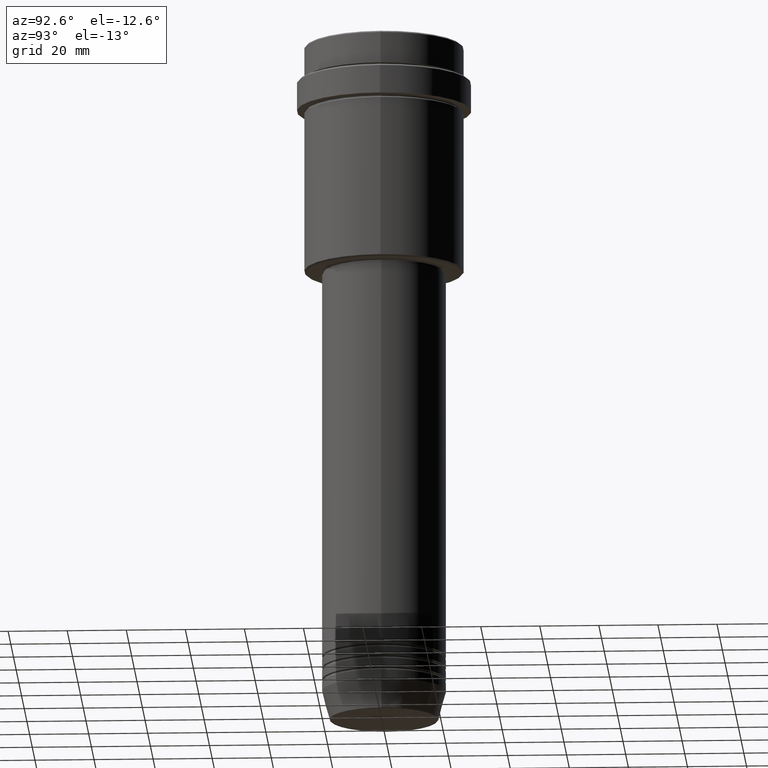
[diagram: clean part render]
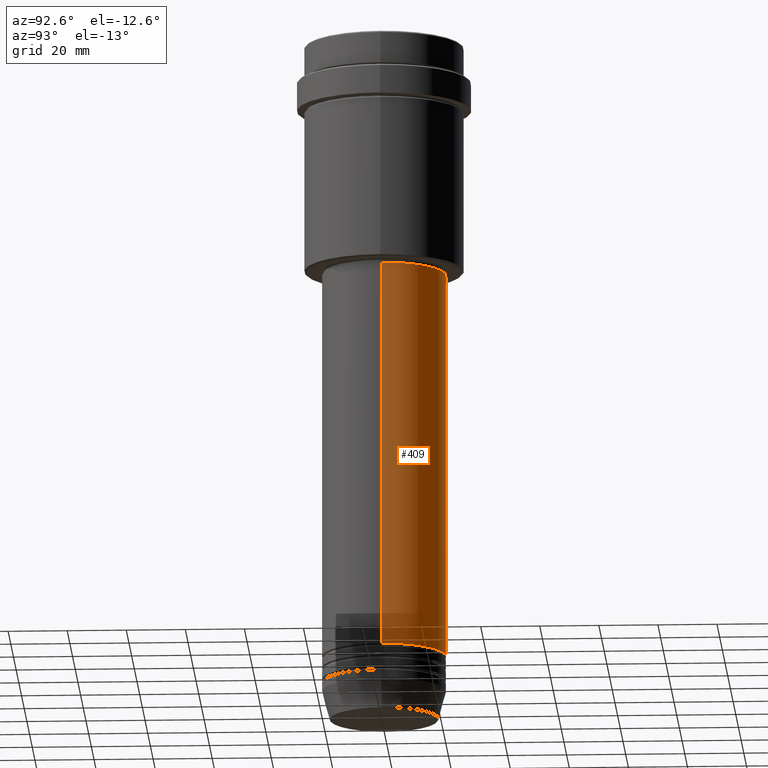
[diagram: same view with one face highlighted and labeled with its STEP entity id]
A machine part, auxiliary view. The second image highlights one B-rep face of the part: STEP entity #409.
In plain terms, the highlighted cylindrical surface (partial cylindrical patch) has radius 21 mm, axis along (-0, -0, 1).
Its self-contained STEP definition (entity closure, byte-faithful):
#27 = AXIS2_PLACEMENT_3D ( 'NONE', #1190, #228, #719 ) ;
#46 = VERTEX_POINT ( 'NONE', #684 ) ;
#145 = ORIENTED_EDGE ( 'NONE', *, *, #670, .F. ) ;
#170 = AXIS2_PLACEMENT_3D ( 'NONE', #1236, #271, #496 ) ;
#203 = CARTESIAN_POINT ( 'NONE',  ( -21.00000000000000000, 2.571758278209441661E-15, -210.9999999999999432 ) ) ;
#214 = CARTESIAN_POINT ( 'NONE',  ( -21.00000000000000000, 2.571758278209441661E-15, 0.000000000000000000 ) ) ;
#222 = CIRCLE ( 'NONE', #170, 21.00000000000000000 ) ;
#228 = DIRECTION ( 'NONE',  ( -0.000000000000000000, -0.000000000000000000, 1.000000000000000000 ) ) ;
#271 = DIRECTION ( 'NONE',  ( -0.000000000000000000, -0.000000000000000000, 1.000000000000000000 ) ) ;
#325 = DIRECTION ( 'NONE',  ( -0.000000000000000000, -0.000000000000000000, 1.000000000000000000 ) ) ;
#333 = VECTOR ( 'NONE', #432, 1000.000000000000000 ) ;
#337 = EDGE_CURVE ( 'NONE', #464, #1215, #1069, .T. ) ;
#350 = EDGE_CURVE ( 'NONE', #464, #46, #427, .T. ) ;
#409 = ADVANCED_FACE ( 'NONE', ( #865 ), #415, .T. ) ;
#415 = CYLINDRICAL_SURFACE ( 'NONE', #27, 21.00000000000000000 ) ;
#427 = LINE ( 'NONE', #546, #1163 ) ;
#432 = DIRECTION ( 'NONE',  ( -0.000000000000000000, -0.000000000000000000, 1.000000000000000000 ) ) ;
#433 = DIRECTION ( 'NONE',  ( -0.000000000000000000, -0.000000000000000000, 1.000000000000000000 ) ) ;
#464 = VERTEX_POINT ( 'NONE', #958 ) ;
#486 = CARTESIAN_POINT ( 'NONE',  ( -21.00000000000000000, 2.571758278209441661E-15, -79.00000000000001421 ) ) ;
#496 = DIRECTION ( 'NONE',  ( 1.000000000000000000, 0.000000000000000000, 0.000000000000000000 ) ) ;
#529 = EDGE_LOOP ( 'NONE', ( #890, #851, #145, #685 ) ) ;
#546 = CARTESIAN_POINT ( 'NONE',  ( 21.00000000000000000, 0.000000000000000000, 0.000000000000000000 ) ) ;
#670 = EDGE_CURVE ( 'NONE', #46, #1134, #222, .T. ) ;
#684 = CARTESIAN_POINT ( 'NONE',  ( 21.00000000000000000, 0.000000000000000000, -79.00000000000001421 ) ) ;
#685 = ORIENTED_EDGE ( 'NONE', *, *, #350, .F. ) ;
#719 = DIRECTION ( 'NONE',  ( 1.000000000000000000, 0.000000000000000000, 0.000000000000000000 ) ) ;
#811 = EDGE_CURVE ( 'NONE', #1215, #1134, #1056, .T. ) ;
#851 = ORIENTED_EDGE ( 'NONE', *, *, #811, .T. ) ;
#865 = FACE_OUTER_BOUND ( 'NONE', #529, .T. ) ;
#890 = ORIENTED_EDGE ( 'NONE', *, *, #337, .T. ) ;
#958 = CARTESIAN_POINT ( 'NONE',  ( 21.00000000000000000, 0.000000000000000000, -210.9999999999999432 ) ) ;
#1056 = LINE ( 'NONE', #214, #333 ) ;
#1069 = CIRCLE ( 'NONE', #1375, 21.00000000000000000 ) ;
#1075 = DIRECTION ( 'NONE',  ( 1.000000000000000000, 0.000000000000000000, 0.000000000000000000 ) ) ;
#1134 = VERTEX_POINT ( 'NONE', #486 ) ;
#1163 = VECTOR ( 'NONE', #433, 1000.000000000000000 ) ;
#1165 = CARTESIAN_POINT ( 'NONE',  ( 0.000000000000000000, 0.000000000000000000, -210.9999999999999432 ) ) ;
#1190 = CARTESIAN_POINT ( 'NONE',  ( 0.000000000000000000, 0.000000000000000000, 0.000000000000000000 ) ) ;
#1215 = VERTEX_POINT ( 'NONE', #203 ) ;
#1236 = CARTESIAN_POINT ( 'NONE',  ( 0.000000000000000000, 0.000000000000000000, -79.00000000000001421 ) ) ;
#1375 = AXIS2_PLACEMENT_3D ( 'NONE', #1165, #325, #1075 ) ;